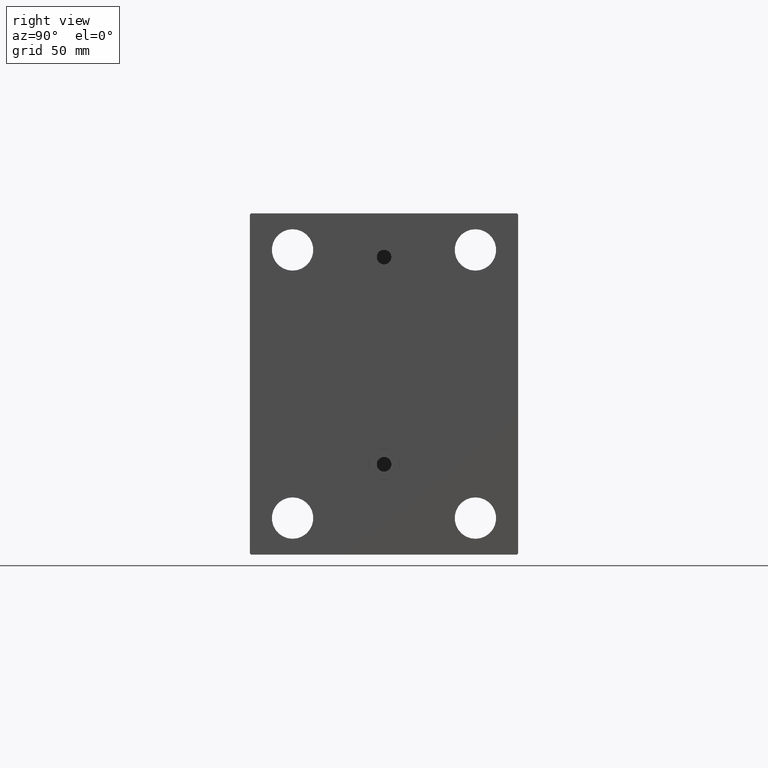
[diagram: clean part render]
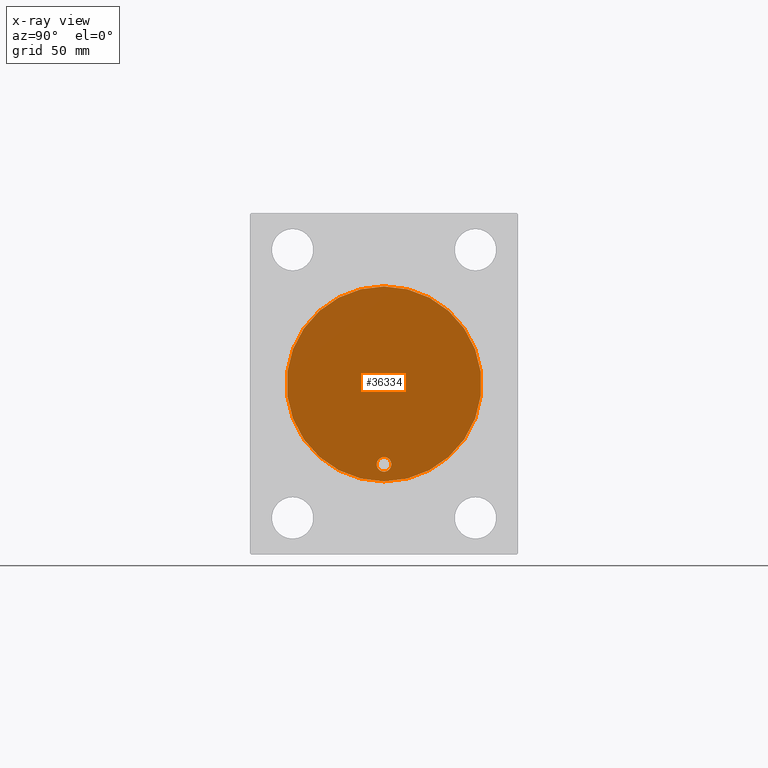
[diagram: x-ray — body ghosted, one internal face saturated and labeled with its STEP entity id]
A machine part, right view, then the same camera in x-ray: the body is ghosted and one INTERNAL B-rep face — a face not visible from any outside direction — is saturated and labeled: STEP entity #36334.
In plain terms, the highlighted planar face has unit normal (-1, 0, 0).
Its self-contained STEP definition (entity closure, byte-faithful):
#1327 = CARTESIAN_POINT ( 'NONE',  ( 51.00000000000000000, 0.000000000000000000, 40.00000000000000000 ) ) ;
#2851 = CARTESIAN_POINT ( 'NONE',  ( 51.00000000000000000, 0.000000000000000000, 0.000000000000000000 ) ) ;
#3237 = DIRECTION ( 'NONE',  ( 0.000000000000000000, 0.000000000000000000, 1.000000000000000000 ) ) ;
#6310 = VERTEX_POINT ( 'NONE', #29438 ) ;
#8111 = AXIS2_PLACEMENT_3D ( 'NONE', #30862, #41280, #38186 ) ;
#8374 = AXIS2_PLACEMENT_3D ( 'NONE', #26207, #37086, #19124 ) ;
#9157 = VERTEX_POINT ( 'NONE', #14815 ) ;
#9694 = DIRECTION ( 'NONE',  ( 0.000000000000000000, 0.000000000000000000, 1.000000000000000000 ) ) ;
#10433 = AXIS2_PLACEMENT_3D ( 'NONE', #13247, #27640, #17009 ) ;
#10666 = CIRCLE ( 'NONE', #8374, 40.00000000000000000 ) ;
#11561 = ORIENTED_EDGE ( 'NONE', *, *, #34786, .T. ) ;
#12972 = ORIENTED_EDGE ( 'NONE', *, *, #18389, .T. ) ;
#13247 = CARTESIAN_POINT ( 'NONE',  ( 51.00000000000000000, 4.041334437186266200E-15, -33.00000000000000000 ) ) ;
#14815 = CARTESIAN_POINT ( 'NONE',  ( 51.00000000000000000, 4.041334437186266200E-15, -36.00000000000000711 ) ) ;
#17009 = DIRECTION ( 'NONE',  ( 0.000000000000000000, 0.000000000000000000, 1.000000000000000000 ) ) ;
#18389 = EDGE_CURVE ( 'NONE', #40993, #6310, #23826, .T. ) ;
#19124 = DIRECTION ( 'NONE',  ( 0.000000000000000000, 0.000000000000000000, 1.000000000000000000 ) ) ;
#20048 = AXIS2_PLACEMENT_3D ( 'NONE', #2851, #42038, #9694 ) ;
#21893 = EDGE_CURVE ( 'NONE', #44630, #9157, #42029, .T. ) ;
#22744 = AXIS2_PLACEMENT_3D ( 'NONE', #36492, #32486, #3237 ) ;
#23211 = EDGE_CURVE ( 'NONE', #9157, #44630, #30759, .T. ) ;
#23495 = ORIENTED_EDGE ( 'NONE', *, *, #21893, .F. ) ;
#23826 = CIRCLE ( 'NONE', #20048, 40.00000000000000000 ) ;
#25724 = ORIENTED_EDGE ( 'NONE', *, *, #23211, .F. ) ;
#26207 = CARTESIAN_POINT ( 'NONE',  ( 51.00000000000000000, 0.000000000000000000, 0.000000000000000000 ) ) ;
#27640 = DIRECTION ( 'NONE',  ( -1.000000000000000000, 0.000000000000000000, 0.000000000000000000 ) ) ;
#28920 = FACE_OUTER_BOUND ( 'NONE', #33120, .T. ) ;
#29438 = CARTESIAN_POINT ( 'NONE',  ( 51.00000000000000000, 4.898587196589413026E-15, -40.00000000000000000 ) ) ;
#30759 = CIRCLE ( 'NONE', #10433, 3.000000000000002665 ) ;
#30862 = CARTESIAN_POINT ( 'NONE',  ( 51.00000000000000000, 4.041334437186266200E-15, -33.00000000000000000 ) ) ;
#32486 = DIRECTION ( 'NONE',  ( -1.000000000000000000, 0.000000000000000000, 0.000000000000000000 ) ) ;
#33120 = EDGE_LOOP ( 'NONE', ( #12972, #11561 ) ) ;
#33493 = EDGE_LOOP ( 'NONE', ( #25724, #23495 ) ) ;
#34786 = EDGE_CURVE ( 'NONE', #6310, #40993, #10666, .T. ) ;
#35790 = FACE_BOUND ( 'NONE', #33493, .T. ) ;
#36334 = ADVANCED_FACE ( 'NONE', ( #35790, #28920 ), #39803, .T. ) ;
#36492 = CARTESIAN_POINT ( 'NONE',  ( 51.00000000000000000, 0.000000000000000000, 0.000000000000000000 ) ) ;
#37086 = DIRECTION ( 'NONE',  ( -1.000000000000000000, 0.000000000000000000, 0.000000000000000000 ) ) ;
#38186 = DIRECTION ( 'NONE',  ( 0.000000000000000000, 0.000000000000000000, 1.000000000000000000 ) ) ;
#39803 = PLANE ( 'NONE',  #22744 ) ;
#40993 = VERTEX_POINT ( 'NONE', #1327 ) ;
#41280 = DIRECTION ( 'NONE',  ( -1.000000000000000000, 0.000000000000000000, 0.000000000000000000 ) ) ;
#41753 = CARTESIAN_POINT ( 'NONE',  ( 51.00000000000000000, 4.408728476930471644E-15, -30.00000000000000000 ) ) ;
#42029 = CIRCLE ( 'NONE', #8111, 3.000000000000002665 ) ;
#42038 = DIRECTION ( 'NONE',  ( -1.000000000000000000, 0.000000000000000000, 0.000000000000000000 ) ) ;
#44630 = VERTEX_POINT ( 'NONE', #41753 ) ;